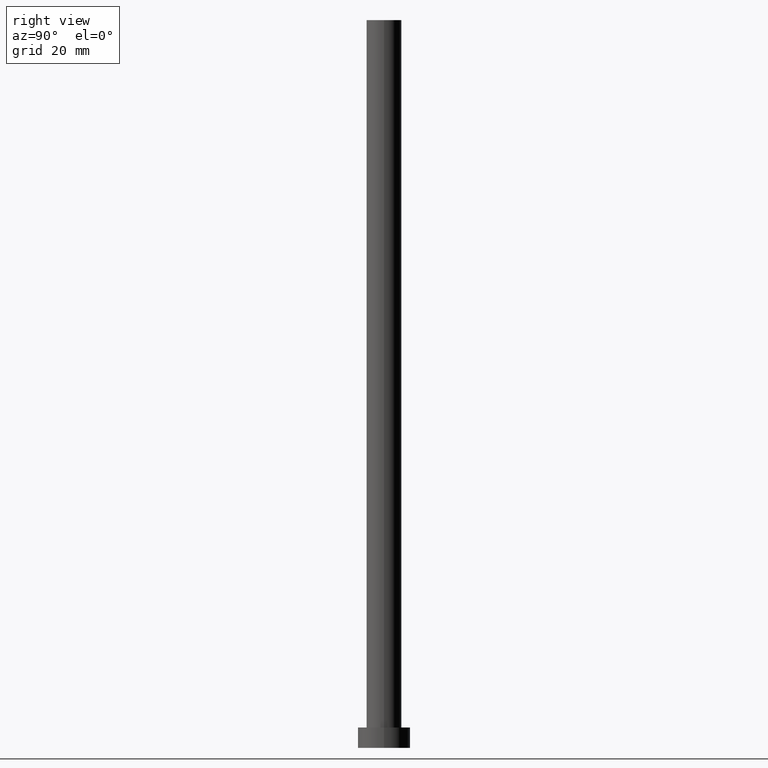
[diagram: clean part render]
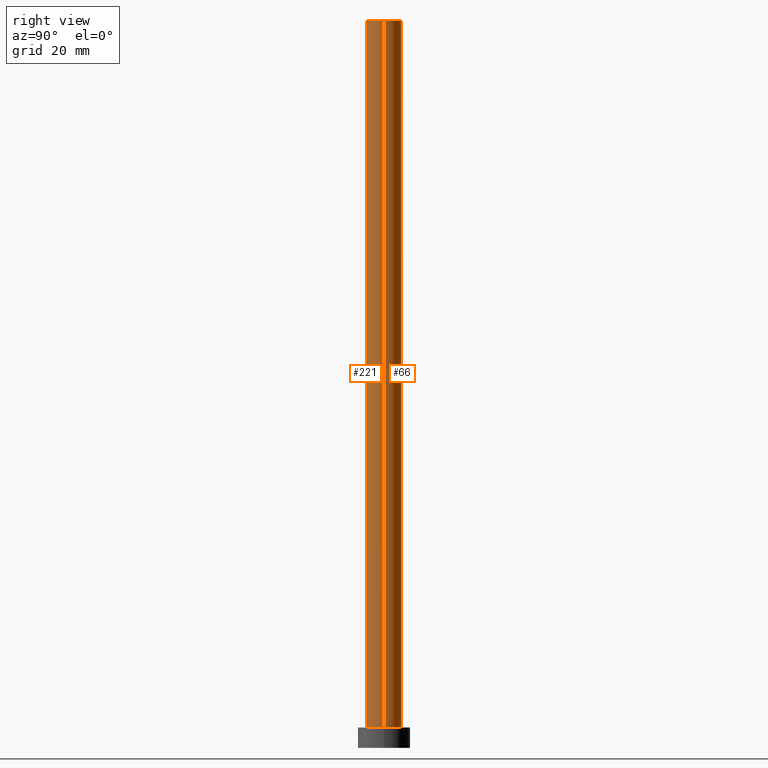
[diagram: same view with one multi-face feature highlighted, each face labeled with its STEP entity id]
A machine part, right view. The highlighted faces form ONE feature: a constant-radius fillet chain: 2 tangent blend faces with common blend radius 6 mm. The faces share edges in the B-rep.
Their STEP definitions:
[1] entity #66 (Cylinder):
#4 = CARTESIAN_POINT ( 'NONE',  ( -6.000000000000000888, 0.000000000000000000, 250.0000000000000000 ) ) ;
#12 = CIRCLE ( 'NONE', #32, 6.000000000000000888 ) ;
#27 = DIRECTION ( 'NONE',  ( -0.000000000000000000, -0.000000000000000000, -1.000000000000000000 ) ) ;
#32 = AXIS2_PLACEMENT_3D ( 'NONE', #87, #179, #49 ) ;
#36 = ORIENTED_EDGE ( 'NONE', *, *, #226, .F. ) ;
#40 = CARTESIAN_POINT ( 'NONE',  ( 0.000000000000000000, 0.000000000000000000, 250.0000000000000000 ) ) ;
#49 = DIRECTION ( 'NONE',  ( 1.000000000000000000, 0.000000000000000000, 0.000000000000000000 ) ) ;
#58 = ORIENTED_EDGE ( 'NONE', *, *, #178, .T. ) ;
#59 = VERTEX_POINT ( 'NONE', #254 ) ;
#61 = VECTOR ( 'NONE', #102, 1000.000000000000000 ) ;
#65 = CYLINDRICAL_SURFACE ( 'NONE', #218, 6.000000000000000888 ) ;
#66 = ADVANCED_FACE ( 'NONE', ( #235 ), #65, .T. ) ;
#67 = CARTESIAN_POINT ( 'NONE',  ( 6.000000000000000888, 7.347880794884120722E-16, 250.0000000000000000 ) ) ;
#74 = VERTEX_POINT ( 'NONE', #188 ) ;
#82 = CIRCLE ( 'NONE', #146, 6.000000000000000888 ) ;
#85 = CARTESIAN_POINT ( 'NONE',  ( 0.000000000000000000, 0.000000000000000000, 250.0000000000000000 ) ) ;
#87 = CARTESIAN_POINT ( 'NONE',  ( 0.000000000000000000, 0.000000000000000000, 7.000000000000000000 ) ) ;
#99 = DIRECTION ( 'NONE',  ( -1.000000000000000000, 0.000000000000000000, 0.000000000000000000 ) ) ;
#102 = DIRECTION ( 'NONE',  ( -0.000000000000000000, -0.000000000000000000, -1.000000000000000000 ) ) ;
#106 = LINE ( 'NONE', #67, #61 ) ;
#128 = EDGE_CURVE ( 'NONE', #192, #74, #12, .T. ) ;
#133 = VERTEX_POINT ( 'NONE', #216 ) ;
#140 = DIRECTION ( 'NONE',  ( 1.000000000000000000, 0.000000000000000000, 0.000000000000000000 ) ) ;
#146 = AXIS2_PLACEMENT_3D ( 'NONE', #85, #238, #140 ) ;
#171 = ORIENTED_EDGE ( 'NONE', *, *, #250, .F. ) ;
#178 = EDGE_CURVE ( 'NONE', #133, #192, #106, .T. ) ;
#179 = DIRECTION ( 'NONE',  ( 0.000000000000000000, 0.000000000000000000, 1.000000000000000000 ) ) ;
#180 = LINE ( 'NONE', #4, #196 ) ;
#188 = CARTESIAN_POINT ( 'NONE',  ( -6.000000000000000888, 0.000000000000000000, 7.000000000000000000 ) ) ;
#192 = VERTEX_POINT ( 'NONE', #214 ) ;
#196 = VECTOR ( 'NONE', #199, 1000.000000000000000 ) ;
#199 = DIRECTION ( 'NONE',  ( -0.000000000000000000, -0.000000000000000000, -1.000000000000000000 ) ) ;
#212 = ORIENTED_EDGE ( 'NONE', *, *, #128, .T. ) ;
#214 = CARTESIAN_POINT ( 'NONE',  ( 6.000000000000000888, 7.347880794884120722E-16, 7.000000000000000000 ) ) ;
#216 = CARTESIAN_POINT ( 'NONE',  ( 6.000000000000000888, 7.347880794884120722E-16, 250.0000000000000000 ) ) ;
#218 = AXIS2_PLACEMENT_3D ( 'NONE', #40, #27, #99 ) ;
#226 = EDGE_CURVE ( 'NONE', #59, #74, #180, .T. ) ;
#230 = EDGE_LOOP ( 'NONE', ( #171, #58, #212, #36 ) ) ;
#235 = FACE_OUTER_BOUND ( 'NONE', #230, .T. ) ;
#238 = DIRECTION ( 'NONE',  ( 0.000000000000000000, 0.000000000000000000, 1.000000000000000000 ) ) ;
#250 = EDGE_CURVE ( 'NONE', #133, #59, #82, .T. ) ;
#254 = CARTESIAN_POINT ( 'NONE',  ( -6.000000000000000888, 0.000000000000000000, 250.0000000000000000 ) ) ;
[2] entity #221 (Cylinder):
#4 = CARTESIAN_POINT ( 'NONE',  ( -6.000000000000000888, 0.000000000000000000, 250.0000000000000000 ) ) ;
#7 = DIRECTION ( 'NONE',  ( 0.000000000000000000, 0.000000000000000000, 1.000000000000000000 ) ) ;
#14 = EDGE_LOOP ( 'NONE', ( #34, #130, #15, #134 ) ) ;
#15 = ORIENTED_EDGE ( 'NONE', *, *, #226, .T. ) ;
#17 = CARTESIAN_POINT ( 'NONE',  ( 0.000000000000000000, 0.000000000000000000, 7.000000000000000000 ) ) ;
#34 = ORIENTED_EDGE ( 'NONE', *, *, #178, .F. ) ;
#45 = CYLINDRICAL_SURFACE ( 'NONE', #122, 6.000000000000000888 ) ;
#54 = CIRCLE ( 'NONE', #112, 6.000000000000000888 ) ;
#59 = VERTEX_POINT ( 'NONE', #254 ) ;
#61 = VECTOR ( 'NONE', #102, 1000.000000000000000 ) ;
#67 = CARTESIAN_POINT ( 'NONE',  ( 6.000000000000000888, 7.347880794884120722E-16, 250.0000000000000000 ) ) ;
#71 = CIRCLE ( 'NONE', #195, 6.000000000000000888 ) ;
#74 = VERTEX_POINT ( 'NONE', #188 ) ;
#90 = EDGE_CURVE ( 'NONE', #74, #192, #71, .T. ) ;
#102 = DIRECTION ( 'NONE',  ( -0.000000000000000000, -0.000000000000000000, -1.000000000000000000 ) ) ;
#106 = LINE ( 'NONE', #67, #61 ) ;
#107 = DIRECTION ( 'NONE',  ( -0.000000000000000000, -0.000000000000000000, -1.000000000000000000 ) ) ;
#112 = AXIS2_PLACEMENT_3D ( 'NONE', #198, #7, #143 ) ;
#122 = AXIS2_PLACEMENT_3D ( 'NONE', #124, #107, #123 ) ;
#123 = DIRECTION ( 'NONE',  ( -1.000000000000000000, 0.000000000000000000, 0.000000000000000000 ) ) ;
#124 = CARTESIAN_POINT ( 'NONE',  ( 0.000000000000000000, 0.000000000000000000, 250.0000000000000000 ) ) ;
#130 = ORIENTED_EDGE ( 'NONE', *, *, #211, .F. ) ;
#133 = VERTEX_POINT ( 'NONE', #216 ) ;
#134 = ORIENTED_EDGE ( 'NONE', *, *, #90, .T. ) ;
#143 = DIRECTION ( 'NONE',  ( 1.000000000000000000, 0.000000000000000000, 0.000000000000000000 ) ) ;
#172 = DIRECTION ( 'NONE',  ( 0.000000000000000000, 0.000000000000000000, 1.000000000000000000 ) ) ;
#178 = EDGE_CURVE ( 'NONE', #133, #192, #106, .T. ) ;
#180 = LINE ( 'NONE', #4, #196 ) ;
#188 = CARTESIAN_POINT ( 'NONE',  ( -6.000000000000000888, 0.000000000000000000, 7.000000000000000000 ) ) ;
#192 = VERTEX_POINT ( 'NONE', #214 ) ;
#195 = AXIS2_PLACEMENT_3D ( 'NONE', #17, #172, #200 ) ;
#196 = VECTOR ( 'NONE', #199, 1000.000000000000000 ) ;
#198 = CARTESIAN_POINT ( 'NONE',  ( 0.000000000000000000, 0.000000000000000000, 250.0000000000000000 ) ) ;
#199 = DIRECTION ( 'NONE',  ( -0.000000000000000000, -0.000000000000000000, -1.000000000000000000 ) ) ;
#200 = DIRECTION ( 'NONE',  ( 1.000000000000000000, 0.000000000000000000, 0.000000000000000000 ) ) ;
#202 = FACE_OUTER_BOUND ( 'NONE', #14, .T. ) ;
#211 = EDGE_CURVE ( 'NONE', #59, #133, #54, .T. ) ;
#214 = CARTESIAN_POINT ( 'NONE',  ( 6.000000000000000888, 7.347880794884120722E-16, 7.000000000000000000 ) ) ;
#216 = CARTESIAN_POINT ( 'NONE',  ( 6.000000000000000888, 7.347880794884120722E-16, 250.0000000000000000 ) ) ;
#221 = ADVANCED_FACE ( 'NONE', ( #202 ), #45, .T. ) ;
#226 = EDGE_CURVE ( 'NONE', #59, #74, #180, .T. ) ;
#254 = CARTESIAN_POINT ( 'NONE',  ( -6.000000000000000888, 0.000000000000000000, 250.0000000000000000 ) ) ;